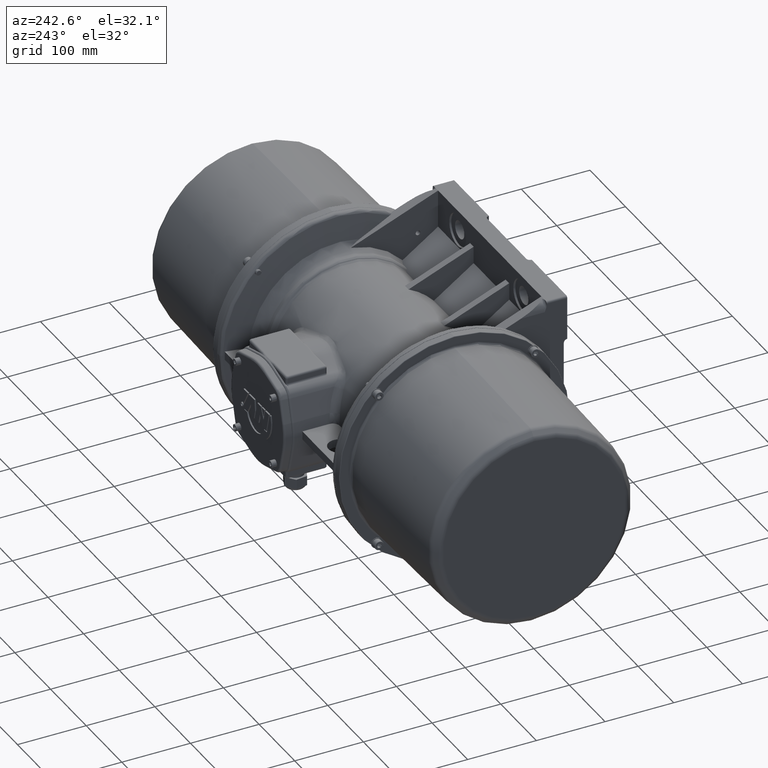
[diagram: clean part render]
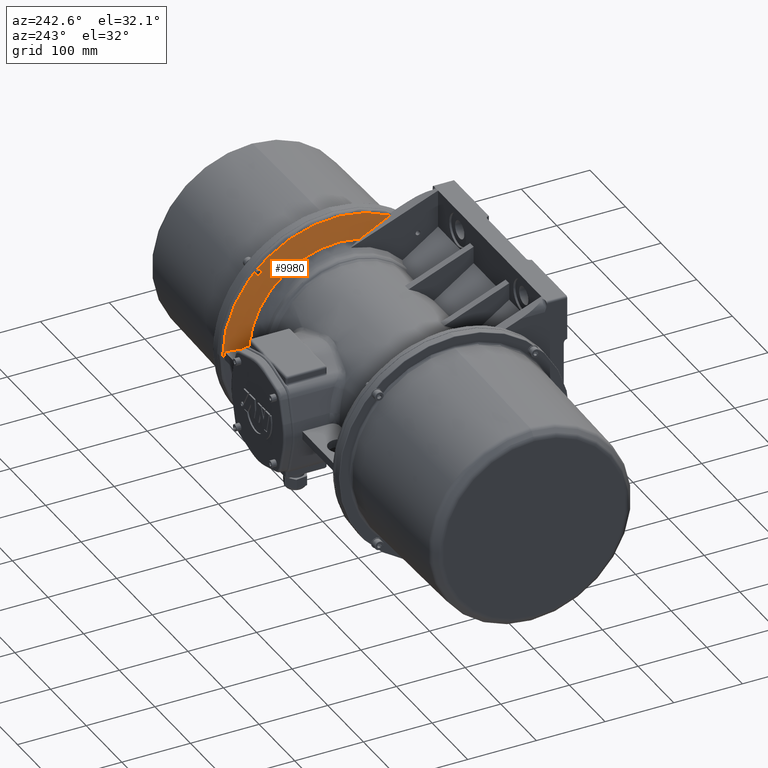
[diagram: same view with one face highlighted and labeled with its STEP entity id]
A machine part, auxiliary view. The second image highlights one B-rep face of the part: STEP entity #9980.
In plain terms, the highlighted conical surface has half-angle 80 deg.
Its self-contained STEP definition (entity closure, byte-faithful):
#3925 = AXIS2_PLACEMENT_3D ( 'NONE', #60711, #60712, #60713 ) ;
#7529 = CARTESIAN_POINT ( 'NONE',  ( 150.1925129349334900, 129.2574885373879900, 6.000000000000000000 ) ) ;
#7635 = CARTESIAN_POINT ( 'NONE',  ( 156.4167483933040000, -79.02406464397209600, 144.4991026902546300 ) ) ;
#9051 = B_SPLINE_CURVE_WITH_KNOTS ( 'NONE', 3,
 ( #36244, #36246, #36247, #36248, #36249, #36250 ),
 .UNSPECIFIED., .F., .F.,
 ( 4, 2, 4 ),
 ( 0.0000000000000000000, 0.02581155264295969700, 0.05162310528591939500 ),
 .UNSPECIFIED. ) ;
#9976 = B_SPLINE_CURVE_WITH_KNOTS ( 'NONE', 3,
 ( #35125, #35135, #35137, #35138 ),
 .UNSPECIFIED., .F., .F.,
 ( 4, 4 ),
 ( 0.0000000000000000000, 0.03324675717330300600 ),
 .UNSPECIFIED. ) ;
#9980 = ADVANCED_FACE ( 'NONE', ( #47009, #47029 ), #47028, .T. ) ;
#10005 = B_SPLINE_CURVE_WITH_KNOTS ( 'NONE', 3,
 ( #35389, #35398, #35400, #35402 ),
 .UNSPECIFIED., .F., .F.,
 ( 4, 4 ),
 ( 3.975693764903729500E-018, 0.006000031964830328800 ),
 .UNSPECIFIED. ) ;
#13383 = CARTESIAN_POINT ( 'NONE',  ( 156.4167483933040000, 164.6960639212225000, 0.0000000000000000000 ) ) ;
#13389 = CARTESIAN_POINT ( 'NONE',  ( 156.1920698012585000, 113.8441917710339900, 117.2441917710343900 ) ) ;
#13496 = CARTESIAN_POINT ( 'NONE',  ( 150.1925129349334900, -31.41995900968539600, 125.5240396052592000 ) ) ;
#13562 = CARTESIAN_POINT ( 'NONE',  ( 155.9413595822779800, 162.0000000000000000, -3.975736125808770300E-015 ) ) ;
#13653 = CARTESIAN_POINT ( 'NONE',  ( 155.3443267085530100, 113.8441917710339900, 110.4441917710344000 ) ) ;
#15700 = AXIS2_PLACEMENT_3D ( 'NONE', #35140, #35143, #35145 ) ;
#23657 = B_SPLINE_CURVE_WITH_KNOTS ( 'NONE', 3,
 ( #60555, #60561, #60562, #60563, #60564, #60565, #60566, #60567, #60568, #60569, #60570, #60571, #60572, #60573, #60574, #60575, #60576, #60577, #60578, #60579, #60580, #60581, #60582, #60583, #60584, #60585, #60586, #60587, #60588, #60589 ),
 .UNSPECIFIED., .F., .F.,
 ( 4, 2, 2, 2, 2, 2, 2, 2, 2, 2, 2, 2, 2, 2, 4 ),
 ( 0.0000000000000000000, 0.0006692730551873518300, 0.001338546110374703700, 0.002007819165562055500, 0.002677092220749407300, 0.003346365275936758700, 0.004015638331124111000, 0.005354184441498812000, 0.006023457496686136100, 0.006692730551873461000, 0.007362003607060785100, 0.008031276662248109200, 0.009369822772622700100, 0.01003909582780999400, 0.01070836888299728400 ),
 .UNSPECIFIED. ) ;
#23658 = B_SPLINE_CURVE_WITH_KNOTS ( 'NONE', 3,
 ( #60590, #60594, #60595, #60596, #60597, #60598, #60599, #60600, #60601, #60602, #60603, #60604, #60605, #60606, #60607, #60608, #60609, #60610, #60611, #60612, #60613, #60614, #60615, #60616, #60617, #60618, #60619, #60620, #60621, #60622 ),
 .UNSPECIFIED., .F., .F.,
 ( 4, 2, 2, 2, 2, 2, 2, 2, 2, 2, 2, 2, 2, 2, 4 ),
 ( 0.0000000000000000000, 0.0006693396518129326400, 0.001338679303625865300, 0.002008018955438797800, 0.002677358607251730600, 0.003346698259064663300, 0.004016037910877595700, 0.005354717214503444700, 0.006024056866316390900, 0.006693396518129335300, 0.007362736169942280700, 0.008032075821755227700, 0.009370755125381175600, 0.01004009477719413800, 0.01070943442900710300 ),
 .UNSPECIFIED. ) ;
#30104 = EDGE_CURVE ( 'NONE', #46603, #46341, #23657, .T. ) ;
#30106 = EDGE_CURVE ( 'NONE', #46341, #46603, #23658, .T. ) ;
#30131 = EDGE_CURVE ( 'NONE', #45980, #46343, #57150, .T. ) ;
#32511 = LINE ( 'NONE', #34177, #32512 ) ;
#32512 = VECTOR ( 'NONE', #34179, 1000.000000000000100 ) ;
#32642 = CIRCLE ( 'NONE', #15700, 129.3966705251452000 ) ;
#33524 = AXIS2_PLACEMENT_3D ( 'NONE', #42462, #42455, #42454 ) ;
#34177 = CARTESIAN_POINT ( 'NONE',  ( 156.4167483933040000, 164.6960639212225000, 0.0000000000000000000 ) ) ;
#34179 = DIRECTION ( 'NONE',  ( 0.1736481776669319400, 0.9848077530122076900, -0.0000000000000000000 ) ) ;
#35125 = CARTESIAN_POINT ( 'NONE',  ( 150.1925129349334900, 129.2574885373879900, 6.000000000000000000 ) ) ;
#35135 = CARTESIAN_POINT ( 'NONE',  ( 152.1149182437370700, 140.1717304207598100, 6.000000000000000000 ) ) ;
#35137 = CARTESIAN_POINT ( 'NONE',  ( 154.0378106461669700, 151.0858865105775200, 6.000000000000000000 ) ) ;
#35138 = CARTESIAN_POINT ( 'NONE',  ( 155.9609447548734800, 162.0000000000000000, 6.000000000000000000 ) ) ;
#35140 = CARTESIAN_POINT ( 'NONE',  ( 150.1925129349334900, 2.277980511270149600E-014, 0.0000000000000000000 ) ) ;
#35143 = DIRECTION ( 'NONE',  ( 1.000000000000000000, 1.516707102608384900E-016, 0.0000000000000000000 ) ) ;
#35145 = DIRECTION ( 'NONE',  ( -2.144999210797720700E-016, 1.000000000000000000, 0.0000000000000000000 ) ) ;
#35389 = CARTESIAN_POINT ( 'NONE',  ( 155.9413595822779800, 162.0000000000000000, -3.975736125808770300E-015 ) ) ;
#35398 = CARTESIAN_POINT ( 'NONE',  ( 155.9413595822779800, 162.0000000000000000, 2.000021309943637200 ) ) ;
#35400 = CARTESIAN_POINT ( 'NONE',  ( 155.9478925851497900, 162.0000000000000000, 4.000021294889152500 ) ) ;
#35402 = CARTESIAN_POINT ( 'NONE',  ( 155.9609447548734800, 162.0000000000000000, 6.000000000000000000 ) ) ;
#36244 = CARTESIAN_POINT ( 'NONE',  ( 150.1925129349334900, -31.41995900968539600, 125.5240396052592000 ) ) ;
#36246 = CARTESIAN_POINT ( 'NONE',  ( 151.0750972907054900, -39.37144046130738700, 128.6935112328288000 ) ) ;
#36247 = CARTESIAN_POINT ( 'NONE',  ( 152.0542118789858500, -47.31203097368891300, 131.8586417167851400 ) ) ;
#36248 = CARTESIAN_POINT ( 'NONE',  ( 154.1457278213268000, -63.17817403542265700, 138.1829085316021000 ) ) ;
#36249 = CARTESIAN_POINT ( 'NONE',  ( 155.2582395625072400, -71.10371413044435900, 141.3420398981492100 ) ) ;
#36250 = CARTESIAN_POINT ( 'NONE',  ( 156.4167483933040000, -79.02406464397209600, 144.4991026902546300 ) ) ;
#37684 = EDGE_LOOP ( 'NONE', ( #39852, #39853, #47146, #47154, #47153, #46919 ) ) ;
#37708 = EDGE_LOOP ( 'NONE', ( #39850, #39851 ) ) ;
#38794 = VERTEX_POINT ( 'NONE', #72108 ) ;
#39850 = ORIENTED_EDGE ( 'NONE', *, *, #30106, .T. ) ;
#39851 = ORIENTED_EDGE ( 'NONE', *, *, #30104, .T. ) ;
#39852 = ORIENTED_EDGE ( 'NONE', *, *, #70488, .T. ) ;
#39853 = ORIENTED_EDGE ( 'NONE', *, *, #30131, .T. ) ;
#42454 = DIRECTION ( 'NONE',  ( -1.685260409678337700E-016, 1.000000000000000000, 0.0000000000000000000 ) ) ;
#42455 = DIRECTION ( 'NONE',  ( 1.000000000000000000, 2.527890614517505200E-016, 8.426302048391689700E-017 ) ) ;
#42462 = CARTESIAN_POINT ( 'NONE',  ( 156.4167483933040000, 2.775557561562889800E-014, 1.169384318321320000E-030 ) ) ;
#45915 = VERTEX_POINT ( 'NONE', #7529 ) ;
#45980 = VERTEX_POINT ( 'NONE', #7635 ) ;
#46341 = VERTEX_POINT ( 'NONE', #13389 ) ;
#46343 = VERTEX_POINT ( 'NONE', #13383 ) ;
#46446 = VERTEX_POINT ( 'NONE', #13496 ) ;
#46512 = VERTEX_POINT ( 'NONE', #13562 ) ;
#46603 = VERTEX_POINT ( 'NONE', #13653 ) ;
#46919 = ORIENTED_EDGE ( 'NONE', *, *, #69339, .T. ) ;
#47009 = FACE_BOUND ( 'NONE', #37708, .T. ) ;
#47028 = CONICAL_SURFACE ( 'NONE', #33524, 164.6960639212225000, 1.396263401595462500 ) ;
#47029 = FACE_OUTER_BOUND ( 'NONE', #37684, .T. ) ;
#47146 = ORIENTED_EDGE ( 'NONE', *, *, #69191, .F. ) ;
#47153 = ORIENTED_EDGE ( 'NONE', *, *, #69336, .F. ) ;
#47154 = ORIENTED_EDGE ( 'NONE', *, *, #69371, .T. ) ;
#57150 = CIRCLE ( 'NONE', #3925, 164.6960639212225000 ) ;
#60555 = CARTESIAN_POINT ( 'NONE',  ( 155.3443267085530100, 113.8441917710339900, 110.4441917710344000 ) ) ;
#60561 = CARTESIAN_POINT ( 'NONE',  ( 155.3727450978676400, 114.0687409582740300, 110.4441917710344400 ) ) ;
#60562 = CARTESIAN_POINT ( 'NONE',  ( 155.4033870952378300, 114.2891770148533700, 110.4662162334142400 ) ) ;
#60563 = CARTESIAN_POINT ( 'NONE',  ( 155.4688509092059700, 114.7222400608299900, 110.5521161642532600 ) ) ;
#60564 = CARTESIAN_POINT ( 'NONE',  ( 155.5040663383294100, 114.9370113201245500, 110.6169795933270300 ) ) ;
#60565 = CARTESIAN_POINT ( 'NONE',  ( 155.5768433771801800, 115.3468508682907900, 110.7862237129525900 ) ) ;
#60566 = CARTESIAN_POINT ( 'NONE',  ( 155.6141809151666300, 115.5410647674497800, 110.8896640027841700 ) ) ;
#60567 = CARTESIAN_POINT ( 'NONE',  ( 155.6906989626725400, 115.9084367498484800, 111.1335636211832000 ) ) ;
#60568 = CARTESIAN_POINT ( 'NONE',  ( 155.7301793677447100, 116.0825486263869900, 111.2754854428007400 ) ) ;
#60569 = CARTESIAN_POINT ( 'NONE',  ( 155.8078267709214500, 116.3951996234645900, 111.5856850631739500 ) ) ;
#60570 = CARTESIAN_POINT ( 'NONE',  ( 155.8463389385403000, 116.5356061686320300, 111.7548435732017400 ) ) ;
#60571 = CARTESIAN_POINT ( 'NONE',  ( 155.9227389619956600, 116.7839936852253400, 112.1217945878325400 ) ) ;
#60572 = CARTESIAN_POINT ( 'NONE',  ( 155.9603083288599000, 116.8905873465411800, 112.3184219380379100 ) ) ;
#60573 = CARTESIAN_POINT ( 'NONE',  ( 156.0673719348228000, 117.1476491022599800, 112.9270396550925700 ) ) ;
#60574 = CARTESIAN_POINT ( 'NONE',  ( 156.1336615072179100, 117.2403255665045100, 113.3726098301498700 ) ) ;
#60575 = CARTESIAN_POINT ( 'NONE',  ( 156.2159540244447800, 117.2459425419871600, 114.0368579674624700 ) ) ;
#60576 = CARTESIAN_POINT ( 'NONE',  ( 156.2410791465009900, 117.2258458982722700, 114.2617975389190100 ) ) ;
#60577 = CARTESIAN_POINT ( 'NONE',  ( 156.2846276998221800, 117.1420495943485500, 114.7009957105918100 ) ) ;
#60578 = CARTESIAN_POINT ( 'NONE',  ( 156.3030246632862700, 117.0791307048857700, 114.9142490703914900 ) ) ;
#60579 = CARTESIAN_POINT ( 'NONE',  ( 156.3331276898667000, 116.9114120563848500, 115.3281096430170200 ) ) ;
#60580 = CARTESIAN_POINT ( 'NONE',  ( 156.3448188670766700, 116.8053399355569600, 115.5298689670533300 ) ) ;
#60581 = CARTESIAN_POINT ( 'NONE',  ( 156.3603250101434100, 116.5593202033084000, 115.9028281298143200 ) ) ;
#60582 = CARTESIAN_POINT ( 'NONE',  ( 156.3643439722882200, 116.4187810047932300, 116.0762877154759400 ) ) ;
#60583 = CARTESIAN_POINT ( 'NONE',  ( 156.3649233618591000, 115.9432168331684800, 116.5565969582541000 ) ) ;
#60584 = CARTESIAN_POINT ( 'NONE',  ( 156.3498427856564200, 115.5659393514539300, 116.8102744477878800 ) ) ;
#60585 = CARTESIAN_POINT ( 'NONE',  ( 156.3054111572437800, 114.9434610733472400, 117.0694239014393500 ) ) ;
#60586 = CARTESIAN_POINT ( 'NONE',  ( 156.2872748242147100, 114.7304822191913400, 117.1341860256921400 ) ) ;
#60587 = CARTESIAN_POINT ( 'NONE',  ( 156.2444985947878400, 114.2938610135397300, 117.2216716786755800 ) ) ;
#60588 = CARTESIAN_POINT ( 'NONE',  ( 156.2196663853758000, 114.0688569663577300, 117.2441917710344100 ) ) ;
#60589 = CARTESIAN_POINT ( 'NONE',  ( 156.1920698012585000, 113.8441917710339900, 117.2441917710343900 ) ) ;
#60590 = CARTESIAN_POINT ( 'NONE',  ( 156.1920698012585000, 113.8441917710339900, 117.2441917710343900 ) ) ;
#60594 = CARTESIAN_POINT ( 'NONE',  ( 156.1644721255315200, 113.6195176888603400, 117.2441917710344100 ) ) ;
#60595 = CARTESIAN_POINT ( 'NONE',  ( 156.1346313863345500, 113.3989533545010900, 117.2221425762268700 ) ) ;
#60596 = CARTESIAN_POINT ( 'NONE',  ( 156.0706434102048900, 112.9656411171683600, 117.1361422017744200 ) ) ;
#60597 = CARTESIAN_POINT ( 'NONE',  ( 156.0361068222145800, 112.7507392324772200, 117.0711965663983700 ) ) ;
#60598 = CARTESIAN_POINT ( 'NONE',  ( 155.9644591398567000, 112.3407486551892700, 116.9017818679567100 ) ) ;
#60599 = CARTESIAN_POINT ( 'NONE',  ( 155.9275657154283900, 112.1464784157261800, 116.7982433174878300 ) ) ;
#60600 = CARTESIAN_POINT ( 'NONE',  ( 155.8516490548599300, 111.7790350519294700, 116.5541325271085800 ) ) ;
#60601 = CARTESIAN_POINT ( 'NONE',  ( 155.8123297856892900, 111.6049394390290000, 116.4121185934267100 ) ) ;
#60602 = CARTESIAN_POINT ( 'NONE',  ( 155.7346901535012800, 111.2923797851982900, 116.1017911067219600 ) ) ;
#60603 = CARTESIAN_POINT ( 'NONE',  ( 155.6960248802007500, 111.1520293969353800, 115.9325764776543500 ) ) ;
#60604 = CARTESIAN_POINT ( 'NONE',  ( 155.6190156707960200, 110.9037696490758300, 115.5655304001411700 ) ) ;
#60605 = CARTESIAN_POINT ( 'NONE',  ( 155.5810096100186400, 110.7973039283035800, 115.3689679563438200 ) ) ;
#60606 = CARTESIAN_POINT ( 'NONE',  ( 155.4722798912595500, 110.5405112731029500, 114.7604706223953000 ) ) ;
#60607 = CARTESIAN_POINT ( 'NONE',  ( 155.4043944929374600, 110.4479833263313400, 114.3150875700233500 ) ) ;
#60608 = CARTESIAN_POINT ( 'NONE',  ( 155.3196720379292800, 110.4424716759109900, 113.6510750763125900 ) ) ;
#60609 = CARTESIAN_POINT ( 'NONE',  ( 155.2937158929963500, 110.4625935209226800, 113.4261764592017800 ) ) ;
#60610 = CARTESIAN_POINT ( 'NONE',  ( 155.2486417650803500, 110.5464028927017600, 112.9871433243112600 ) ) ;
#60611 = CARTESIAN_POINT ( 'NONE',  ( 155.2295451185915200, 110.6093183482075800, 112.7739397813713000 ) ) ;
#60612 = CARTESIAN_POINT ( 'NONE',  ( 155.1982544083613200, 110.7770479830437700, 112.3601181991117700 ) ) ;
#60613 = CARTESIAN_POINT ( 'NONE',  ( 155.1860769999420600, 110.8831278242371400, 112.1583668649379300 ) ) ;
#60614 = CARTESIAN_POINT ( 'NONE',  ( 155.1699197623728100, 111.1291641343270300, 111.7854226623306500 ) ) ;
#60615 = CARTESIAN_POINT ( 'NONE',  ( 155.1657270704204200, 111.2697211078545900, 111.6119552302731800 ) ) ;
#60616 = CARTESIAN_POINT ( 'NONE',  ( 155.1651305085495100, 111.7453968455464000, 111.1315958669839400 ) ) ;
#60617 = CARTESIAN_POINT ( 'NONE',  ( 155.1809008434578100, 112.1227735400912600, 110.8779319289036100 ) ) ;
#60618 = CARTESIAN_POINT ( 'NONE',  ( 155.2271016623094800, 112.7451452806023300, 110.6188869240339400 ) ) ;
#60619 = CARTESIAN_POINT ( 'NONE',  ( 155.2459354680236500, 112.9580901919818800, 110.5541487227267400 ) ) ;
#60620 = CARTESIAN_POINT ( 'NONE',  ( 155.2902390690110800, 113.3946553422392500, 110.4666962096305400 ) ) ;
#60621 = CARTESIAN_POINT ( 'NONE',  ( 155.3159042009031900, 113.6196100425820700, 110.4441917710343800 ) ) ;
#60622 = CARTESIAN_POINT ( 'NONE',  ( 155.3443267085530100, 113.8441917710339900, 110.4441917710344000 ) ) ;
#60711 = CARTESIAN_POINT ( 'NONE',  ( 156.4167483933040000, 2.372383932550329700E-014, 0.0000000000000000000 ) ) ;
#60712 = DIRECTION ( 'NONE',  ( -1.000000000000000000, -1.516707102608384900E-016, -0.0000000000000000000 ) ) ;
#60713 = DIRECTION ( 'NONE',  ( -1.685260409678337700E-016, 1.000000000000000000, -1.776356839400250500E-015 ) ) ;
#69191 = EDGE_CURVE ( 'NONE', #46512, #46343, #32511, .T. ) ;
#69336 = EDGE_CURVE ( 'NONE', #45915, #38794, #9976, .T. ) ;
#69339 = EDGE_CURVE ( 'NONE', #45915, #46446, #32642, .T. ) ;
#69371 = EDGE_CURVE ( 'NONE', #46512, #38794, #10005, .T. ) ;
#70488 = EDGE_CURVE ( 'NONE', #46446, #45980, #9051, .T. ) ;
#72108 = CARTESIAN_POINT ( 'NONE',  ( 155.9609447548734800, 162.0000000000000000, 6.000000000000000000 ) ) ;